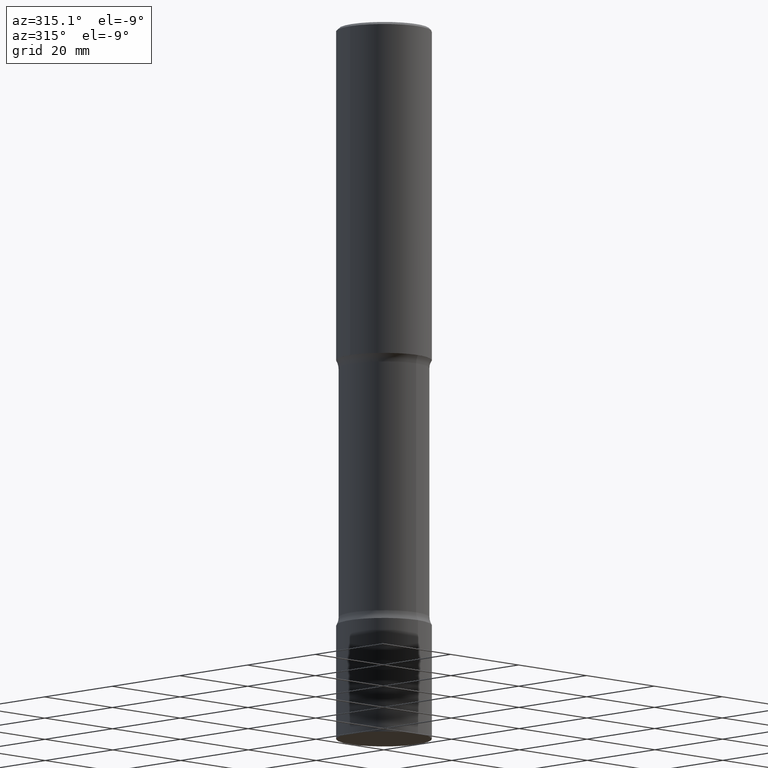
[diagram: clean part render]
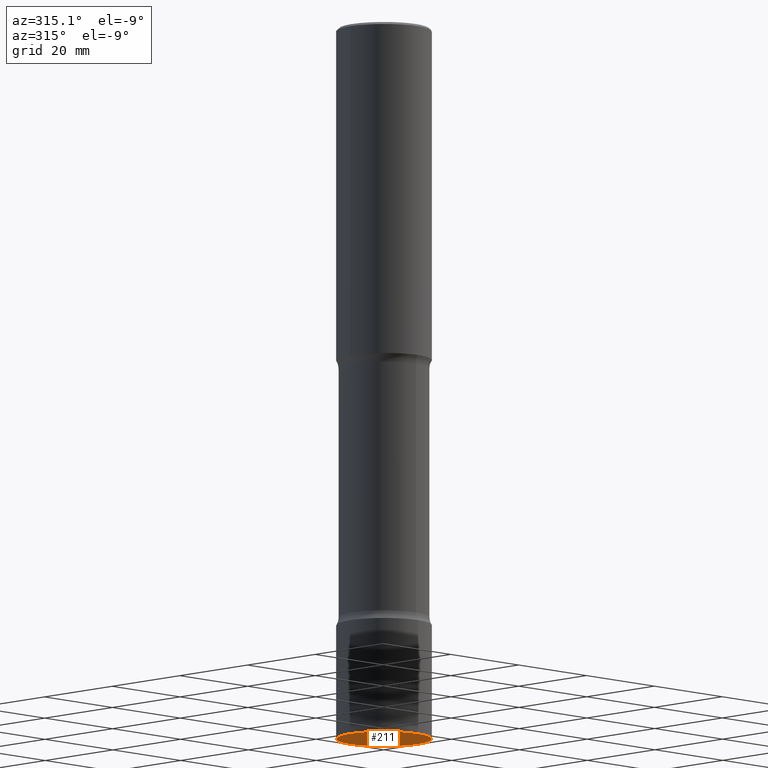
[diagram: same view with one face highlighted and labeled with its STEP entity id]
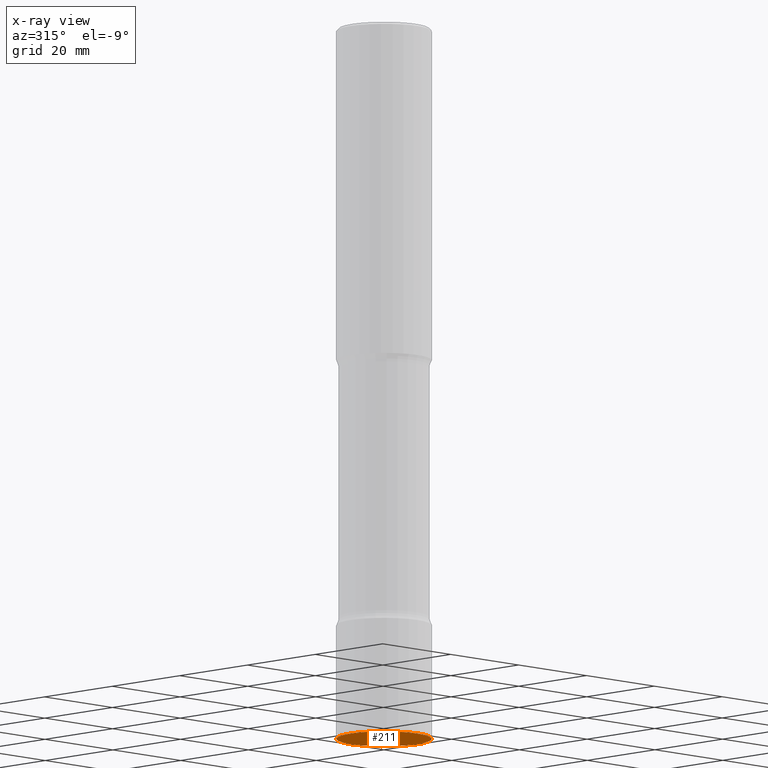
[diagram: x-ray of the same camera — body ghosted, the highlighted face saturated]
A machine part, auxiliary view. The second image highlights one B-rep face of the part: STEP entity #211.
The next image is the same camera in x-ray: the body ghosted, the highlighted face saturated — about 0% of this face is hidden behind the body in this view.
In plain terms, the highlighted planar face has unit normal (0, -0, -1).
Its self-contained STEP definition (entity closure, byte-faithful):
#36 = CARTESIAN_POINT ( 'NONE',  ( 1.444357172508760156E-28, -2.061628559260791379E-14, -5.905499999999999972 ) ) ;
#43 = DIRECTION ( 'NONE',  ( -2.445783037014241883E-29, 3.491031342410958908E-15, 1.000000000000000000 ) ) ;
#73 = DIRECTION ( 'NONE',  ( -2.445783037014241883E-29, 3.491031342410958908E-15, 1.000000000000000000 ) ) ;
#86 = VERTEX_POINT ( 'NONE', #377 ) ;
#90 = CARTESIAN_POINT ( 'NONE',  ( -2.749192406204937672E-15, -0.3937000000000205890, -5.905499999999998195 ) ) ;
#91 = CIRCLE ( 'NONE', #199, 0.3936999999999999389 ) ;
#100 = FACE_OUTER_BOUND ( 'NONE', #266, .T. ) ;
#102 = DIRECTION ( 'NONE',  ( 6.982962677686265922E-15, 1.000000000000000000, -3.491031342410958513E-15 ) ) ;
#111 = DIRECTION ( 'NONE',  ( -6.982962677686265922E-15, -1.000000000000000000, 2.775563112689117089E-15 ) ) ;
#152 = ORIENTED_EDGE ( 'NONE', *, *, #302, .F. ) ;
#199 = AXIS2_PLACEMENT_3D ( 'NONE', #463, #43, #306 ) ;
#211 = ADVANCED_FACE ( 'NONE', ( #100 ), #496, .T. ) ;
#244 = AXIS2_PLACEMENT_3D ( 'NONE', #503, #297, #102 ) ;
#266 = EDGE_LOOP ( 'NONE', ( #397, #152 ) ) ;
#297 = DIRECTION ( 'NONE',  ( 2.445783037014241602E-29, -3.491031342410958513E-15, -1.000000000000000000 ) ) ;
#302 = EDGE_CURVE ( 'NONE', #86, #442, #91, .T. ) ;
#306 = DIRECTION ( 'NONE',  ( -6.982962677686265922E-15, -1.000000000000000000, 2.775563112689117089E-15 ) ) ;
#312 = CIRCLE ( 'NONE', #375, 0.3936999999999999389 ) ;
#371 = EDGE_CURVE ( 'NONE', #442, #86, #312, .T. ) ;
#375 = AXIS2_PLACEMENT_3D ( 'NONE', #36, #73, #111 ) ;
#377 = CARTESIAN_POINT ( 'NONE',  ( 2.797406750687646526E-15, 0.3936999999999793443, -5.905500000000000860 ) ) ;
#397 = ORIENTED_EDGE ( 'NONE', *, *, #371, .F. ) ;
#442 = VERTEX_POINT ( 'NONE', #90 ) ;
#463 = CARTESIAN_POINT ( 'NONE',  ( 1.444357172508760156E-28, -2.061628559260791379E-14, -5.905499999999999972 ) ) ;
#496 = PLANE ( 'NONE',  #244 ) ;
#503 = CARTESIAN_POINT ( 'NONE',  ( 1.444171603492632270E-28, -2.061894304653819197E-14, -5.905499999999999972 ) ) ;